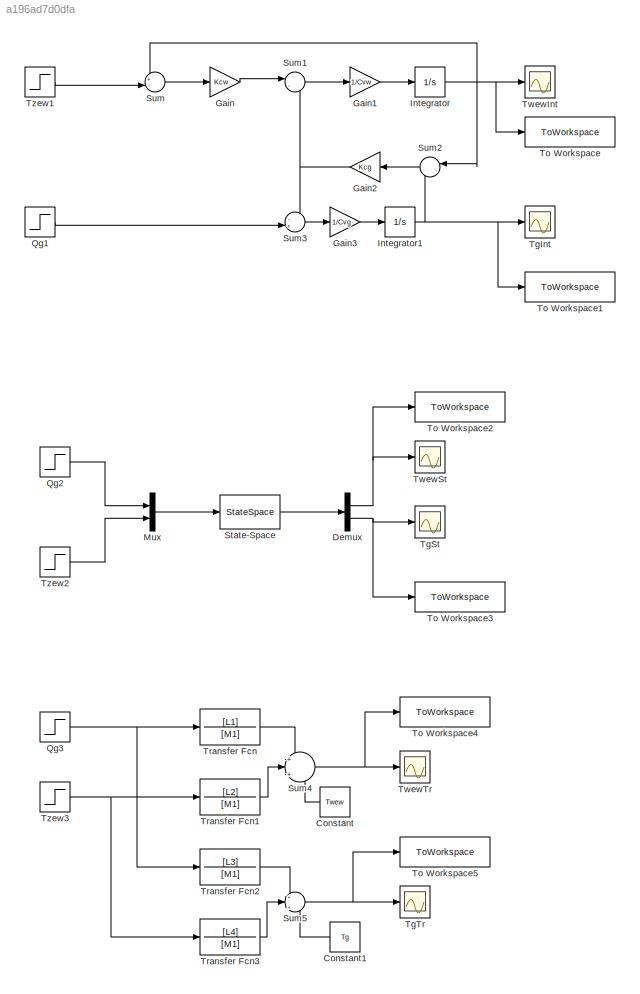
MODEL slx_a196ad7d0dfa
KIND model
CONFIG AbsTol = auto
CONFIG EnableMultiTasking = off
CONFIG FixedStep = auto
CONFIG MaxStep = auto
CONFIG MinStep = auto
CONFIG RelTol = 1e-3
CONFIG SampleTimeConstraint = Unconstrained
CONFIG SolverName = VariableStepAuto
CONFIG StartTime = 0.0
CONFIG StopTime = 20000
BLOCK [Constant] Constant
  NameLocation = top
  Value = Twew
BLOCK [Constant] Constant1
  NameLocation = top
  Value = Tg
BLOCK [Demux] Demux
  Outputs = 2
  Ports = [1, 2]
BLOCK [Gain] Gain
  Gain = Kcw
BLOCK [Gain] Gain1
  Gain = 1/Cvw
BLOCK [Gain] Gain2
  Gain = Kcg
  NameLocation = top
BLOCK [Gain] Gain3
  Gain = 1/Cvg
BLOCK [Integrator] Integrator
  InitialCondition = Twew
  Ports = [1, 1]
BLOCK [Integrator] Integrator1
  InitialCondition = Tg
  Ports = [1, 1]
BLOCK [Mux] Mux
  DisplayOption = bar
  Inputs = 2
  Ports = [2, 1]
BLOCK [Step] Qg1
  After = qg0+dqg
  Before = qg0
  SampleTime = 0
  Time = stepTime
BLOCK [Step] Qg2
  After = qg0+dqg
  Before = qg0
  SampleTime = 0
  Time = stepTime
BLOCK [Step] Qg3
  After = dqg
  SampleTime = 0
  Time = stepTime
BLOCK [StateSpace] State-Space
  A = A
  B = B
  C = [1,0;0,1]
  D = [0,0;0,0]
  InitialCondition = init_con
  Ports = [1, 1]
BLOCK [Sum] Sum
  Inputs = +-|
  Ports = [2, 1]
BLOCK [Sum] Sum1
  Inputs = |-+
  Ports = [2, 1]
BLOCK [Sum] Sum2
  Inputs = |-+
  NameLocation = top
  Ports = [2, 1]
BLOCK [Sum] Sum3
  Inputs = -+|
  Ports = [2, 1]
BLOCK [Sum] Sum4
  Inputs = +|++
  Ports = [3, 1]
BLOCK [Sum] Sum5
  Inputs = +|++
  Ports = [3, 1]
BLOCK [Scope] TgInt
  Floating = off
  NumInputPorts = 1
  Ports = [1]
  ScopeSpecificationString = Simulink.scopes.TimeScopeBlockCfg('CurrentConfiguration', extmgr.ConfigurationSet(extmgr.Configuration('Core','General UI',true),extmgr.Configuration('Core','Source UI',true),extmgr.Configuration('Sources','WiredSimulink',true,'DataLoggingVariableName','ScopeData2'),extmgr.Configuration('Visuals','Time Domain',true,'SerializedDisplays',{struct('MinYLimReal','39.38998','MaxYLimReal','45.49015','YLa...<+1451ch>
BLOCK [Scope] TgSt
  Floating = off
  NumInputPorts = 1
  Ports = [1]
  ScopeSpecificationString = Simulink.scopes.TimeScopeBlockCfg('CurrentConfiguration', extmgr.ConfigurationSet(extmgr.Configuration('Core','General UI',true),extmgr.Configuration('Core','Source UI',true),extmgr.Configuration('Sources','WiredSimulink',true,'DataLoggingVariableName','ScopeData1'),extmgr.Configuration('Visuals','Time Domain',true,'SerializedDisplays',{struct('MinYLimReal','39.25019','MaxYLimReal','46.74829','YLa...<+1401ch>
BLOCK [Scope] TgTr
  Floating = off
  NumInputPorts = 1
  Ports = [1]
  ScopeSpecificationString = Simulink.scopes.TimeScopeBlockCfg('CurrentConfiguration', extmgr.ConfigurationSet(extmgr.Configuration('Core','General UI',true),extmgr.Configuration('Core','Source UI',true),extmgr.Configuration('Sources','WiredSimulink',true,'DataLoggingVariableName','ScopeData4'),extmgr.Configuration('Visuals','Time Domain',true,'SerializedDisplays',{struct('MinYLimReal','39.25019','MaxYLimReal','46.74829','YLa...<+1399ch>
BLOCK [ToWorkspace] To Workspace
  FixptAsFi = on
  MaxDataPoints = inf
  Ports = [1]
  SampleTime = -1
  SaveFormat = Timeseries
  VariableName = TwewInt
BLOCK [ToWorkspace] To Workspace1
  FixptAsFi = on
  MaxDataPoints = inf
  Ports = [1]
  SampleTime = -1
  SaveFormat = Timeseries
  VariableName = TgInt
BLOCK [ToWorkspace] To Workspace2
  FixptAsFi = on
  MaxDataPoints = inf
  Ports = [1]
  SampleTime = -1
  SaveFormat = Timeseries
  VariableName = TwewSt
BLOCK [ToWorkspace] To Workspace3
  FixptAsFi = on
  MaxDataPoints = inf
  Ports = [1]
  SampleTime = -1
  SaveFormat = Timeseries
  VariableName = TgSt
BLOCK [ToWorkspace] To Workspace4
  FixptAsFi = on
  MaxDataPoints = inf
  Ports = [1]
  SampleTime = -1
  SaveFormat = Timeseries
  VariableName = TwewTr
BLOCK [ToWorkspace] To Workspace5
  FixptAsFi = on
  MaxDataPoints = inf
  Ports = [1]
  SampleTime = -1
  SaveFormat = Timeseries
  VariableName = TgTr
BLOCK [TransferFcn] Transfer Fcn
  Denominator = [M1]
  Numerator = [L1]
BLOCK [TransferFcn] Transfer Fcn1
  Denominator = [M1]
  Numerator = [L2]
BLOCK [TransferFcn] Transfer Fcn2
  Denominator = [M1]
  Numerator = [L3]
BLOCK [TransferFcn] Transfer Fcn3
  Denominator = [M1]
  Numerator = [L4]
BLOCK [Scope] TwewInt
  Floating = off
  NumInputPorts = 1
  Ports = [1]
  ScopeSpecificationString = Simulink.scopes.TimeScopeBlockCfg('CurrentConfiguration', extmgr.ConfigurationSet(extmgr.Configuration('Core','General UI',true),extmgr.Configuration('Core','Source UI',true),extmgr.Configuration('Sources','WiredSimulink',true,'DataLoggingVariableName','ScopeData1'),extmgr.Configuration('Visuals','Time Domain',true,'SerializedDisplays',{struct('MinYLimReal','19.50019','MaxYLimReal','24.49829','YLa...<+1404ch>
BLOCK [Scope] TwewSt
  Floating = off
  NumInputPorts = 1
  Ports = [1]
  ScopeSpecificationString = Simulink.scopes.TimeScopeBlockCfg('CurrentConfiguration', extmgr.ConfigurationSet(extmgr.Configuration('Core','General UI',true),extmgr.Configuration('Core','Source UI',true),extmgr.Configuration('Sources','WiredSimulink',true),extmgr.Configuration('Visuals','Time Domain',true,'SerializedDisplays',{struct('MinYLimReal','19.37524','MaxYLimReal','25.62286','YLabelReal','','MinYLimMag','19.37524','Ma...<+1431ch>
BLOCK [Scope] TwewTr
  Floating = off
  NumInputPorts = 1
  Ports = [1]
  ScopeSpecificationString = Simulink.scopes.TimeScopeBlockCfg('CurrentConfiguration', extmgr.ConfigurationSet(extmgr.Configuration('Core','General UI',true),extmgr.Configuration('Core','Source UI',true),extmgr.Configuration('Sources','WiredSimulink',true,'DataLoggingVariableName','ScopeData3'),extmgr.Configuration('Visuals','Time Domain',true,'SerializedDisplays',{struct('MinYLimReal','19.38998','MaxYLimReal','25.49016','YLa...<+1465ch>
BLOCK [Step] Tzew1
  After = Tzew0+dTzew
  Before = Tzew0
  SampleTime = 0
  Time = stepTime
BLOCK [Step] Tzew2
  After = Tzew0+dTzew
  Before = Tzew0
  SampleTime = 0
  Time = stepTime
BLOCK [Step] Tzew3
  After = dTzew
  SampleTime = 0
  Time = stepTime
LINE Constant1:1 -> Sum5:3
LINE Constant:1 -> Sum4:3
NET Demux:1 -> To Workspace2:1, TwewSt:1
NET Demux:2 -> TgSt:1, To Workspace3:1
LINE Gain1:1 -> Integrator:1
NET Gain2:1 -> Sum1:2, Sum3:1
LINE Gain3:1 -> Integrator1:1
LINE Gain:1 -> Sum1:1
NET Integrator1:1 -> Sum2:2, TgInt:1, To Workspace1:1
NET Integrator:1 -> Sum2:1, Sum:1, To Workspace:1, TwewInt:1
LINE Mux:1 -> State-Space:1
LINE Qg1:1 -> Sum3:2
LINE Qg2:1 -> Mux:1
NET Qg3:1 -> Transfer Fcn2:1, Transfer Fcn:1
LINE State-Space:1 -> Demux:1
LINE Sum1:1 -> Gain1:1
LINE Sum2:1 -> Gain2:1
LINE Sum3:1 -> Gain3:1
NET Sum4:1 -> To Workspace4:1, TwewTr:1
NET Sum5:1 -> TgTr:1, To Workspace5:1
LINE Sum:1 -> Gain:1
LINE Transfer Fcn1:1 -> Sum4:2
LINE Transfer Fcn2:1 -> Sum5:1
LINE Transfer Fcn3:1 -> Sum5:2
LINE Transfer Fcn:1 -> Sum4:1
LINE Tzew1:1 -> Sum:2
LINE Tzew2:1 -> Mux:2
NET Tzew3:1 -> Transfer Fcn1:1, Transfer Fcn3:1
note: NET lines group one-source signal fan-out (src -> all destinations, sorted); 1:1 wires keep LINE
